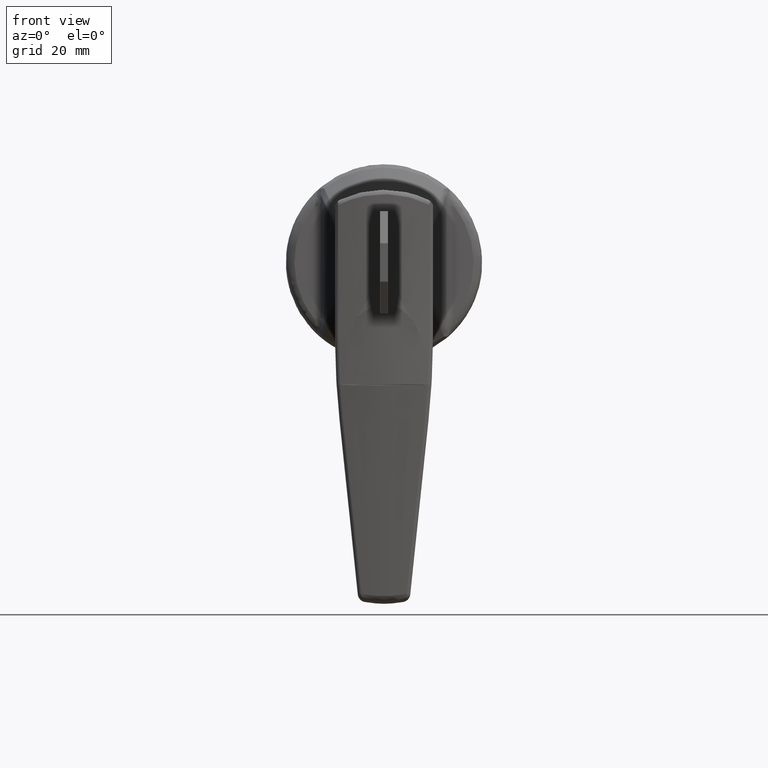
[diagram: clean part render]
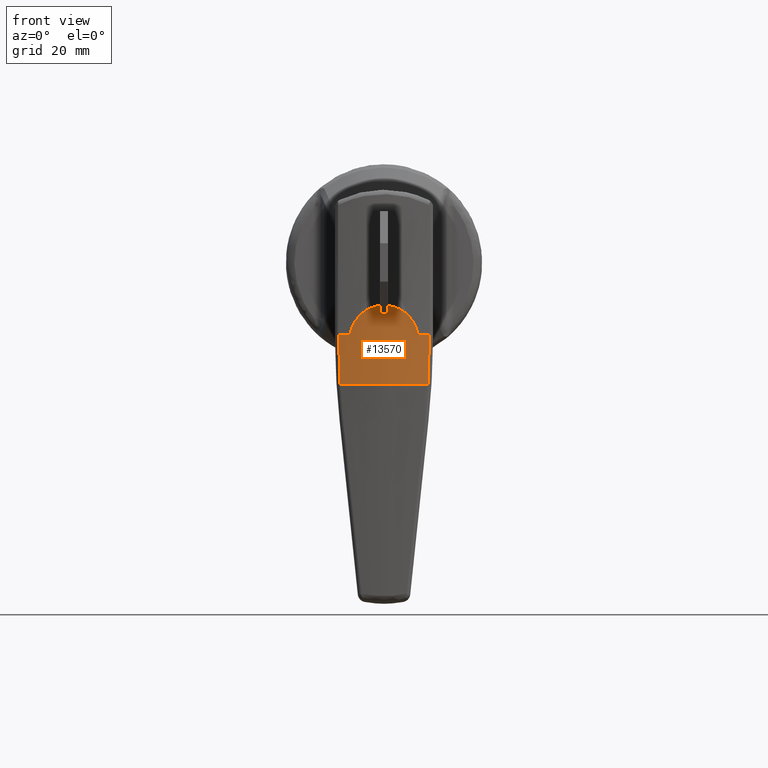
[diagram: same view with one face highlighted and labeled with its STEP entity id]
A machine part, front view. The second image highlights one B-rep face of the part: STEP entity #13570.
In plain terms, the highlighted face is a freeform B-spline surface patch.
Its self-contained STEP definition (entity closure, byte-faithful):
#9259=CARTESIAN_POINT('',(-43.101720617469297,-10.288011473755359,-28.617123403483301));
#9260=VERTEX_POINT('',#9259);
#9274=CARTESIAN_POINT('',(-43.101720617469297,10.288011473755359,-28.617123403483351));
#9275=VERTEX_POINT('',#9274);
#9276=CARTESIAN_POINT('',(-43.101720617469297,10.288011473755359,-28.617123403483351));
#9277=CARTESIAN_POINT('',(-44.892292183190087,1.370432E-013,-28.719627963843397));
#9278=CARTESIAN_POINT('',(-43.101720617469297,-10.288011473755359,-28.617123403483301));
#9286=(BOUNDED_CURVE()B_SPLINE_CURVE(2,(#9276,#9277,#9278),.UNSPECIFIED.,.F.,.U.)CURVE()GEOMETRIC_REPRESENTATION_ITEM()QUASI_UNIFORM_CURVE()RATIONAL_B_SPLINE_CURVE((1.0,0.985189888622137,1.0))REPRESENTATION_ITEM(''));
#9287=EDGE_CURVE('',#9275,#9260,#9286,.T.);
#9472=CARTESIAN_POINT('',(-43.032771112112599,10.676601927120061,-17.0));
#9473=VERTEX_POINT('',#9472);
#9509=CARTESIAN_POINT('',(-43.032771112112599,10.676601927120061,-17.0));
#9510=CARTESIAN_POINT('',(-43.034079502676832,10.669366424953830,-18.937730734636109));
#9511=CARTESIAN_POINT('',(-43.040611516213652,10.633356244807240,-20.874912165371789));
#9512=CARTESIAN_POINT('',(-43.063795638452817,10.503793101085460,-24.748163051512769));
#9513=CARTESIAN_POINT('',(-43.080442278845346,10.410269525930710,-26.683356993554430));
#9514=CARTESIAN_POINT('',(-43.101720617469297,10.288011473755340,-28.617123403483351));
#9515=B_SPLINE_CURVE_WITH_KNOTS('',3,(#9509,#9510,#9511,#9512,#9513,#9514),.UNSPECIFIED.,.F.,.U.,(4,2,4),(0.0,0.500000000000000,1.0),.UNSPECIFIED.);
#9516=EDGE_CURVE('',#9473,#9275,#9515,.T.);
#9725=CARTESIAN_POINT('',(-43.032771112112599,-10.676601927120080,-17.0));
#9726=VERTEX_POINT('',#9725);
#9754=CARTESIAN_POINT('',(-43.101720617469297,-10.288011473755359,-28.617123403483301));
#9755=CARTESIAN_POINT('',(-43.080442278845467,-10.410269525930170,-26.683356993563230));
#9756=CARTESIAN_POINT('',(-43.063795638051317,-10.503793103352031,-24.748163015687801));
#9757=CARTESIAN_POINT('',(-43.040611515325153,-10.633356249749861,-20.874911985681241));
#9758=CARTESIAN_POINT('',(-43.034079502676782,-10.669366424954010,-18.937730734588950));
#9759=CARTESIAN_POINT('',(-43.032771112112599,-10.676601927120061,-17.0));
#9760=B_SPLINE_CURVE_WITH_KNOTS('',3,(#9754,#9755,#9756,#9757,#9758,#9759),.UNSPECIFIED.,.F.,.U.,(4,2,4),(0.0,0.500000000000000,1.0),.UNSPECIFIED.);
#9761=EDGE_CURVE('',#9260,#9726,#9760,.T.);
#12293=CARTESIAN_POINT('',(-43.481171132575199,-7.799967955378230,-16.222222215297801));
#12294=VERTEX_POINT('',#12293);
#12295=CARTESIAN_POINT('',(-43.345192364419503,-8.774963999999999,-17.0));
#12296=VERTEX_POINT('',#12295);
#12297=CARTESIAN_POINT('',(-43.481171132575227,-7.799967955378207,-16.222222215297808));
#12298=CARTESIAN_POINT('',(-43.479531609649101,-7.812472699361366,-16.277086558659011));
#12299=CARTESIAN_POINT('',(-43.477295536861298,-7.829500870759780,-16.330575273650432));
#12300=CARTESIAN_POINT('',(-43.473022815600473,-7.861873357259783,-16.408730489706478));
#12301=CARTESIAN_POINT('',(-43.471436685433147,-7.873868112676310,-16.434545207499799));
#12302=CARTESIAN_POINT('',(-43.467981210859151,-7.899927723577548,-16.484886430473608));
#12303=CARTESIAN_POINT('',(-43.466119012739462,-7.913938846881697,-16.509336507363980));
#12304=CARTESIAN_POINT('',(-43.460133969922303,-7.958831968896270,-16.580586320843871));
#12305=CARTESIAN_POINT('',(-43.455615614150872,-7.992554072897518,-16.625300089677591));
#12306=CARTESIAN_POINT('',(-43.448011163445592,-8.048862548861170,-16.688162812638780));
#12307=CARTESIAN_POINT('',(-43.445324460280013,-8.068689055401160,-16.708500744812380));
#12308=CARTESIAN_POINT('',(-43.439730553055277,-8.109801678048253,-16.747232686800789));
#12309=CARTESIAN_POINT('',(-43.436829660525987,-8.131042121492605,-16.765602549143900));
#12310=CARTESIAN_POINT('',(-43.427816460721267,-8.196757758093719,-16.817806907115060));
#12311=CARTESIAN_POINT('',(-43.421395678618481,-8.243213630841117,-16.848756009864221));
#12312=CARTESIAN_POINT('',(-43.411114418310078,-8.316890834318649,-16.889356666207650));
#12313=CARTESIAN_POINT('',(-43.407561274326611,-8.342240746382922,-16.901965898756099));
#12314=CARTESIAN_POINT('',(-43.400320792190357,-8.393649211658831,-16.924873466444030));
#12315=CARTESIAN_POINT('',(-43.396638745302347,-8.419671480636495,-16.935170950034799));
#12316=CARTESIAN_POINT('',(-43.385407138438048,-8.498665803978319,-16.962688541166770));
#12317=CARTESIAN_POINT('',(-43.377673071013312,-8.552559017747416,-16.976556761380909));
#12318=CARTESIAN_POINT('',(-43.365684984717532,-8.635257708598150,-16.990587665593079));
#12319=CARTESIAN_POINT('',(-43.361605337809863,-8.663264045669630,-16.994138630579570));
#12320=CARTESIAN_POINT('',(-43.353412427282883,-8.719227255834170,-16.998840283507750));
#12321=CARTESIAN_POINT('',(-43.349306913955168,-8.747132714026767,-17.0));
#12322=CARTESIAN_POINT('',(-43.345192364419503,-8.774964000000001,-17.0));
#12323=B_SPLINE_CURVE_WITH_KNOTS('',3,(#12297,#12298,#12299,#12300,#12301,#12302,#12303,#12304,#12305,#12306,#12307,#12308,#12309,#12310,#12311,#12312,#12313,#12314,#12315,#12316,#12317,#12318,#12319,#12320,#12321,#12322),.UNSPECIFIED.,.F.,.U.,(4,2,2,2,2,2,2,2,2,2,2,2,4),(0.0,0.125000000000007,0.187500000000006,0.250000000000006,0.375000000000003,0.437500000000002,0.500000000000000,0.625000000000000,0.687500000000000,0.750000000000000,0.875000000000001,0.937500000000000,1.0),.UNSPECIFIED.);
#12324=EDGE_CURVE('',#12294,#12296,#12323,.T.);
#12370=CARTESIAN_POINT('',(-43.345192364419503,8.774963999999999,-17.0));
#12371=VERTEX_POINT('',#12370);
#12372=CARTESIAN_POINT('',(-43.481171132575199,7.799967955378290,-16.222222215297801));
#12373=VERTEX_POINT('',#12372);
#12374=CARTESIAN_POINT('',(-43.345192364419511,8.774964000000002,-17.0));
#12375=CARTESIAN_POINT('',(-43.353422748188407,8.719292738211392,-17.0));
#12376=CARTESIAN_POINT('',(-43.361532301893547,8.663897403626699,-16.995383451515590));
#12377=CARTESIAN_POINT('',(-43.373518273669262,8.581223991753756,-16.981450870038849));
#12378=CARTESIAN_POINT('',(-43.377499713673913,8.553625595257181,-16.975602904162571));
#12379=CARTESIAN_POINT('',(-43.385325100538850,8.499117271179282,-16.961613382926551));
#12380=CARTESIAN_POINT('',(-43.389152408364943,8.472324576941745,-16.953513264621741));
#12381=CARTESIAN_POINT('',(-43.400388853224229,8.393296024598731,-16.925981760807218));
#12382=CARTESIAN_POINT('',(-43.407553853985007,8.342400416054797,-16.903341333256979));
#12383=CARTESIAN_POINT('',(-43.421254021340317,8.244234658963613,-16.849389889914580));
#12384=CARTESIAN_POINT('',(-43.427812482278078,8.196786778418396,-16.817830182838829));
#12385=CARTESIAN_POINT('',(-43.439838705844913,8.109103026272221,-16.748173957836219));
#12386=CARTESIAN_POINT('',(-43.445371986175807,8.068401052684370,-16.709876398953568));
#12387=CARTESIAN_POINT('',(-43.455509723433650,7.993341824911461,-16.626276676653770));
#12388=CARTESIAN_POINT('',(-43.460129308025373,7.958866903800081,-16.580640045789380));
#12389=CARTESIAN_POINT('',(-43.468116369525212,7.898956935394184,-16.485560455516040));
#12390=CARTESIAN_POINT('',(-43.471533693328922,7.873154482135566,-16.435789798655129));
#12391=CARTESIAN_POINT('',(-43.477240635027819,7.829918095118002,-16.331755019236390));
#12392=CARTESIAN_POINT('',(-43.479530359773193,7.812482232243277,-16.277128384010020));
#12393=CARTESIAN_POINT('',(-43.481171132575227,7.799967955378211,-16.222222215297819));
#12394=B_SPLINE_CURVE_WITH_KNOTS('',3,(#12374,#12375,#12376,#12377,#12378,#12379,#12380,#12381,#12382,#12383,#12384,#12385,#12386,#12387,#12388,#12389,#12390,#12391,#12392,#12393),.UNSPECIFIED.,.F.,.U.,(4,2,2,2,2,2,2,2,2,4),(0.0,0.125000000000007,0.187500000000009,0.250000000000010,0.375000000000008,0.500000000000007,0.625000000000005,0.750000000000003,0.875000000000002,1.0),.UNSPECIFIED.);
#12395=EDGE_CURVE('',#12371,#12373,#12394,.T.);
#12462=CARTESIAN_POINT('',(-43.481171132575199,-7.799967955378230,-16.222222215297801));
#12463=CARTESIAN_POINT('',(-43.487693930034659,-7.750218173282868,-16.003944241557150));
#12464=CARTESIAN_POINT('',(-43.495370484983290,-7.691203231476288,-15.787227278377950));
#12465=CARTESIAN_POINT('',(-43.508534217963451,-7.588427912402509,-15.464550457092830));
#12466=CARTESIAN_POINT('',(-43.513208087194641,-7.551701316869151,-15.357167748693200));
#12467=CARTESIAN_POINT('',(-43.523003603729187,-7.474087375806553,-15.145044135794761));
#12468=CARTESIAN_POINT('',(-43.528130185859958,-7.433162562771011,-15.040150850015401));
#12469=CARTESIAN_POINT('',(-43.554819453929568,-7.218124739436271,-14.521425859661340));
#12470=CARTESIAN_POINT('',(-43.579548089832592,-7.012992022677469,-14.124697538916140));
#12471=CARTESIAN_POINT('',(-43.620090058213243,-6.656253922005445,-13.556545229830251));
#12472=CARTESIAN_POINT('',(-43.634179597602497,-6.529124866562947,-13.371674732148421));
#12473=CARTESIAN_POINT('',(-43.655971941143861,-6.325780321408311,-13.101304265180710));
#12474=CARTESIAN_POINT('',(-43.663359310427822,-6.255751140703574,-13.012185628047190));
#12475=CARTESIAN_POINT('',(-43.678183727301032,-6.112688996330572,-12.837854343626830));
#12476=CARTESIAN_POINT('',(-43.685633454541907,-6.039541763228464,-12.752475469044031));
#12477=CARTESIAN_POINT('',(-43.722968369389363,-5.665849991947659,-12.334366895664139));
#12478=CARTESIAN_POINT('',(-43.753109238787538,-5.341607929811748,-12.027807506892341));
#12479=CARTESIAN_POINT('',(-43.796859450833672,-4.817616857812708,-11.609340219980290));
#12480=CARTESIAN_POINT('',(-43.811200082005598,-4.636648862679254,-11.476782877039041));
#12481=CARTESIAN_POINT('',(-43.832108064099877,-4.355468776519667,-11.288620833685940));
#12482=CARTESIAN_POINT('',(-43.838989135593927,-4.259929618986419,-11.227576085434441));
#12483=CARTESIAN_POINT('',(-43.852390397515407,-4.067274957398857,-11.110152363207620));
#12484=CARTESIAN_POINT('',(-43.858922976101482,-3.970004443129183,-11.053658694506110));
#12485=CARTESIAN_POINT('',(-43.890673300427267,-3.479006307477988,-10.782105564190980));
#12486=CARTESIAN_POINT('',(-43.913151785213707,-3.071439346683848,-10.599560492059570));
#12487=CARTESIAN_POINT('',(-43.941143970591312,-2.438081013494325,-10.377282498058660));
#12488=CARTESIAN_POINT('',(-43.949520835228689,-2.223274626361143,-10.311824818712751));
#12489=CARTESIAN_POINT('',(-43.960482510119128,-1.895374356616536,-10.226950214434520));
#12490=CARTESIAN_POINT('',(-43.963874061661748,-1.784918628891903,-10.200842216570850));
#12491=CARTESIAN_POINT('',(-43.970050010262753,-1.563684522206037,-10.153492027812490));
#12492=CARTESIAN_POINT('',(-43.972839549539948,-1.452787107293978,-10.132209507497240));
#12493=CARTESIAN_POINT('',(-43.985272165086172,-0.896910645914475,-10.037649021692360));
#12494=CARTESIAN_POINT('',(-43.990370998879449,-0.447699969650570,-9.999672259376391));
#12495=CARTESIAN_POINT('',(-43.990283037130290,0.459337210197326,-10.000331972666309));
#12496=CARTESIAN_POINT('',(-43.985101488971182,0.906258793135063,-10.038938804598940));
#12497=CARTESIAN_POINT('',(-43.970261657109113,1.567173658538369,-10.151820796308821));
#12498=CARTESIAN_POINT('',(-43.964136434810733,1.785891969038658,-10.198661508004159));
#12499=CARTESIAN_POINT('',(-43.949632130680847,2.220125330982978,-10.310960013987421));
#12500=CARTESIAN_POINT('',(-43.941246830190629,2.435777852442175,-10.376464692957811));
#12501=CARTESIAN_POINT('',(-43.912906395353737,3.076943216519374,-10.601511117872221));
#12502=CARTESIAN_POINT('',(-43.890280167808470,3.485515577067301,-10.785396376277340));
#12503=CARTESIAN_POINT('',(-43.852355488547779,4.071347966839242,-11.109865254999020));
#12504=CARTESIAN_POINT('',(-43.839048203782568,4.262095716774495,-11.226174270911301));
#12505=CARTESIAN_POINT('',(-43.818286837482347,4.541362243147177,-11.412999718895330));
#12506=CARTESIAN_POINT('',(-43.811233003684528,4.633307068654737,-11.477337917708111));
#12507=CARTESIAN_POINT('',(-43.796892369111248,4.814879877600395,-11.610196654317670));
#12508=CARTESIAN_POINT('',(-43.789598298319909,4.904594611429483,-11.678786660998609));
#12509=CARTESIAN_POINT('',(-43.752709647099387,5.346346385480302,-12.031653294209519));
#12510=CARTESIAN_POINT('',(-43.722471291390512,5.670989960915653,-12.339706696022290));
#12511=CARTESIAN_POINT('',(-43.677921725649973,6.116646133952719,-12.838953407692509));
#12512=CARTESIAN_POINT('',(-43.663205018151707,6.258274374026365,-13.011598258579170));
#12513=CARTESIAN_POINT('',(-43.634351609334239,6.527533798734354,-13.369508386706020));
#12514=CARTESIAN_POINT('',(-43.620202347150240,6.655272981704047,-13.554943377019731));
#12515=CARTESIAN_POINT('',(-43.579188382374689,7.016142904329786,-14.129795080875310));
#12516=CARTESIAN_POINT('',(-43.554454031275512,7.221109111358780,-14.527973522849731));
#12517=CARTESIAN_POINT('',(-43.512055305944678,7.562638775184571,-15.353137817668690));
#12518=CARTESIAN_POINT('',(-43.494378665289773,7.699233281665769,-15.780248935992461));
#12519=CARTESIAN_POINT('',(-43.481171132575199,7.799967955378290,-16.222222215297801));
#12520=B_SPLINE_CURVE_WITH_KNOTS('',3,(#12462,#12463,#12464,#12465,#12466,#12467,#12468,#12469,#12470,#12471,#12472,#12473,#12474,#12475,#12476,#12477,#12478,#12479,#12480,#12481,#12482,#12483,#12484,#12485,#12486,#12487,#12488,#12489,#12490,#12491,#12492,#12493,#12494,#12495,#12496,#12497,#12498,#12499,#12500,#12501,#12502,#12503,#12504,#12505,#12506,#12507,#12508,#12509,#12510,#12511,#12512,#12513,#12514,#12515,#12516,#12517,#12518,#12519),.UNSPECIFIED.,.F.,.U.,(4,2,2,2,2,2,2,2,2,2,2,2,2,2,2,2,2,2,2,2,2,2,2,2,2,2,2,2,4),(0.0,0.031250000000000,0.046875000000000,0.062499999999999,0.124999999999999,0.156249999999999,0.171874999999999,0.187499999999999,0.249999999999999,0.281249999999999,0.296874999999999,0.312499999999999,0.374999999999999,0.406249999999999,0.421874999999999,0.437499999999999,0.499999999999999,0.562499999999999,0.593749999999999,0.624999999999999,0.687499999999999,0.718749999999999,0.734374999999999,0.749999999999999,0.812500000000000,0.843750000000000,0.875000000000000,0.937500000000000,1.0),.UNSPECIFIED.);
#12521=EDGE_CURVE('',#12294,#12373,#12520,.T.);
#12687=CARTESIAN_POINT('',(-43.345192364419503,-8.774964000000013,-17.0));
#12688=CARTESIAN_POINT('',(-43.204253313440276,-9.728291939939135,-16.999999999999996));
#12689=CARTESIAN_POINT('',(-43.032771112112577,-10.676601927120091,-17.0));
#12697=(BOUNDED_CURVE()B_SPLINE_CURVE(2,(#12687,#12688,#12689),.UNSPECIFIED.,.F.,.U.)CURVE()GEOMETRIC_REPRESENTATION_ITEM()QUASI_UNIFORM_CURVE()RATIONAL_B_SPLINE_CURVE((1.0,0.999871039120492,1.0))REPRESENTATION_ITEM(''));
#12698=EDGE_CURVE('',#12296,#9726,#12697,.T.);
#12728=CARTESIAN_POINT('',(-43.032771112112577,10.676601927120050,-17.0));
#12729=CARTESIAN_POINT('',(-43.204253313440290,9.728291939939060,-17.000000000000004));
#12730=CARTESIAN_POINT('',(-43.345192364419503,8.774964000000027,-17.0));
#12738=(BOUNDED_CURVE()B_SPLINE_CURVE(2,(#12728,#12729,#12730),.UNSPECIFIED.,.F.,.U.)CURVE()GEOMETRIC_REPRESENTATION_ITEM()QUASI_UNIFORM_CURVE()RATIONAL_B_SPLINE_CURVE((1.0,0.999871039120492,1.0))REPRESENTATION_ITEM(''));
#12739=EDGE_CURVE('',#9473,#12371,#12738,.T.);
#13546=CARTESIAN_POINT('',(-42.834257801612601,-11.721426668199715,-29.134693159810883));
#13547=CARTESIAN_POINT('',(-42.834257801612601,-11.721426668199715,-9.521632656383858));
#13548=CARTESIAN_POINT('',(-45.169553710192169,0.002230701738294,-29.134693159810872));
#13549=CARTESIAN_POINT('',(-45.169553710192169,0.002230701738294,-9.521632656383854));
#13550=CARTESIAN_POINT('',(-42.833402877664327,11.725717742547010,-29.134693159810872));
#13551=CARTESIAN_POINT('',(-42.833402877664327,11.725717742547010,-9.521632656383858));
#13559=(BOUNDED_SURFACE()B_SPLINE_SURFACE(1,2,((#13546,#13548,#13550),(#13547,#13549,#13551)),.UNSPECIFIED.,.F.,.F.,.U.)B_SPLINE_SURFACE_WITH_KNOTS((2,2),(3,3),(0.0,19.613060503427029),(0.0,23.675287073517080),.UNSPECIFIED.)GEOMETRIC_REPRESENTATION_ITEM()RATIONAL_B_SPLINE_SURFACE(((0.998043142907844,0.976705090565352,0.993763518437754),(0.998043142907844,0.976705090565352,0.993763518437754)))REPRESENTATION_ITEM('')SURFACE());
#13560=ORIENTED_EDGE('',*,*,#12739,.F.);
#13561=ORIENTED_EDGE('',*,*,#9516,.T.);
#13562=ORIENTED_EDGE('',*,*,#9287,.T.);
#13563=ORIENTED_EDGE('',*,*,#9761,.T.);
#13564=ORIENTED_EDGE('',*,*,#12698,.F.);
#13565=ORIENTED_EDGE('',*,*,#12324,.F.);
#13566=ORIENTED_EDGE('',*,*,#12521,.T.);
#13567=ORIENTED_EDGE('',*,*,#12395,.F.);
#13568=EDGE_LOOP('',(#13560,#13561,#13562,#13563,#13564,#13565,#13566,#13567));
#13569=FACE_OUTER_BOUND('',#13568,.T.);
#13570=ADVANCED_FACE('',(#13569),#13559,.T.);